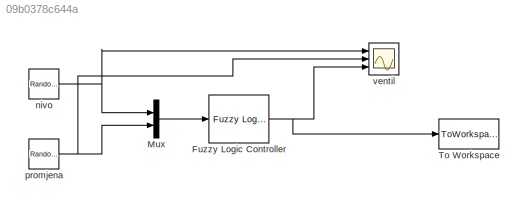
MODEL slx_09b0378c644a
KIND model
CONFIG AbsTol = auto
CONFIG FixedStep = auto
CONFIG MaxStep = auto
CONFIG MinStep = auto
CONFIG RelTol = 1e-3
CONFIG SampleTimeConstraint = Unconstrained
CONFIG Solver = ode45
CONFIG SolverMode = Auto
CONFIG SolverName = ode45
CONFIG StartTime = 0.0
CONFIG StopTime = 5
BLOCK [Reference] Fuzzy Logic Controller  REF=fuzblock/Fuzzy Logic   (lib defined in mdl_858b3b3e7478)
Controller
  Ports = [1, 1]
  SourceBlock = fuzblock/Fuzzy Logic \nController
  SourceType = FIS
  fis = fazzi
BLOCK [Mux] Mux
  DisplayOption = bar
  Inputs = 2
  Ports = [2, 1]
BLOCK [ToWorkspace] To Workspace
  FixptAsFi = on
  MaxDataPoints = inf
  Ports = [1]
  SampleTime = -1
  Save2DSignal = 3-D array (concatenate along third dimension)
  VariableName = f
BLOCK [RandomNumber] nivo
  Mean = -1
  SampleTime = 0.1
BLOCK [RandomNumber] promjena
  Mean = -0.55
  SampleTime = 0.1
  Variance = 0.55
BLOCK [Scope] ventil
  Floating = off
  LegendLocations = 0.86636     0.86927    0.089224    0.041752\n0.83739     0.55305     0.11819    0.041752\n0.75975     0.23888     0.19583    0.041752
  NumInputPorts = 3
  Ports = [3]
  ShowLegends = on
  TickLabels = on
  YMax = 5~5~5
  YMin = -5~-5~-5
NET Fuzzy Logic Controller:1 -> To Workspace:1, ventil:3
LINE Mux:1 -> Fuzzy Logic Controller:1
NET nivo:1 -> Mux:1, ventil:1
NET promjena:1 -> Mux:2, ventil:2
note: NET lines group one-source signal fan-out (src -> all destinations, sorted); 1:1 wires keep LINE
